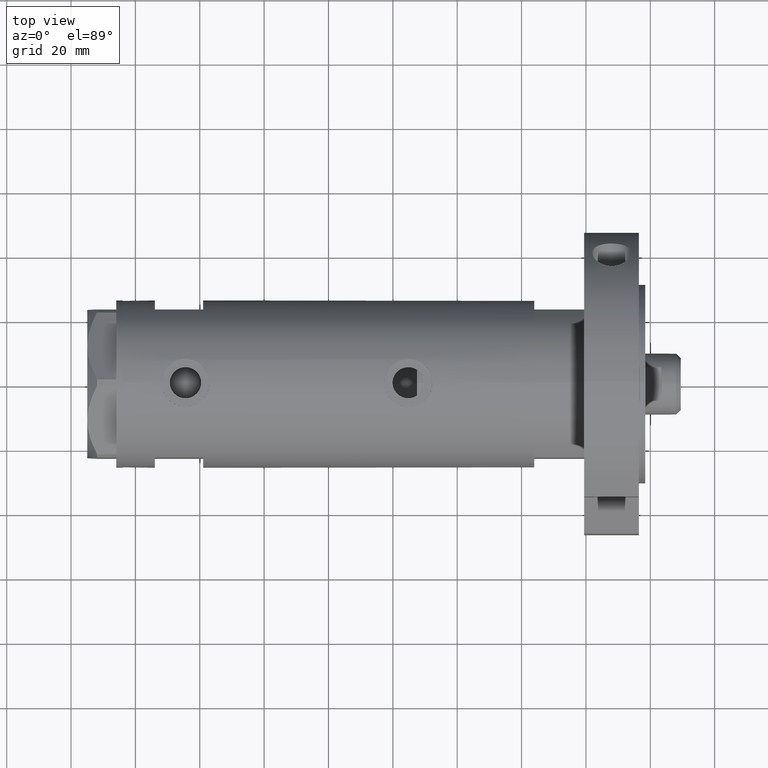
[diagram: clean part render]
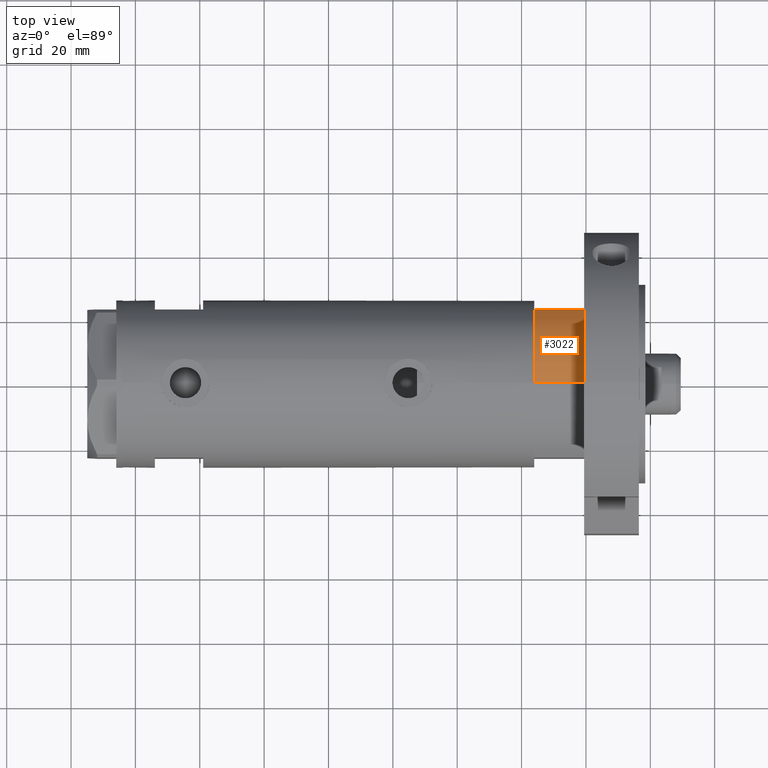
[diagram: same view with one face highlighted and labeled with its STEP entity id]
A machine part, top view. The second image highlights one B-rep face of the part: STEP entity #3022.
In plain terms, the highlighted cylindrical surface (partial cylindrical patch) has radius 26 mm, axis along (-1, -0, 0).
Its self-contained STEP definition (entity closure, byte-faithful):
#201 = ORIENTED_EDGE ( 'NONE', *, *, #5732, .F. ) ;
#350 = DIRECTION ( 'NONE',  ( 0.000000000000000000, 0.000000000000000000, 1.000000000000000000 ) ) ;
#492 = VECTOR ( 'NONE', #4366, 1000.000000000000000 ) ;
#555 = CIRCLE ( 'NONE', #2131, 26.00000000000000355 ) ;
#937 = ORIENTED_EDGE ( 'NONE', *, *, #1455, .F. ) ;
#1052 = CARTESIAN_POINT ( 'NONE',  ( 0.000000000000000000, 0.000000000000000000, 15.50000000000000000 ) ) ;
#1455 = EDGE_CURVE ( 'NONE', #4258, #5343, #4001, .T. ) ;
#2131 = AXIS2_PLACEMENT_3D ( 'NONE', #4830, #350, #2873 ) ;
#2324 = EDGE_LOOP ( 'NONE', ( #6134, #201, #937, #6056 ) ) ;
#2518 = DIRECTION ( 'NONE',  ( -0.000000000000000000, -0.000000000000000000, -1.000000000000000000 ) ) ;
#2873 = DIRECTION ( 'NONE',  ( 1.000000000000000000, 0.000000000000000000, 0.000000000000000000 ) ) ;
#2932 = DIRECTION ( 'NONE',  ( -0.000000000000000000, -0.000000000000000000, -1.000000000000000000 ) ) ;
#3022 = ADVANCED_FACE ( 'NONE', ( #4046 ), #4077, .T. ) ;
#3031 = DIRECTION ( 'NONE',  ( -1.000000000000000000, 0.000000000000000000, 0.000000000000000000 ) ) ;
#3391 = LINE ( 'NONE', #3911, #5367 ) ;
#3469 = AXIS2_PLACEMENT_3D ( 'NONE', #1052, #2518, #3031 ) ;
#3809 = VERTEX_POINT ( 'NONE', #5803 ) ;
#3896 = DIRECTION ( 'NONE',  ( 0.000000000000000000, 0.000000000000000000, 1.000000000000000000 ) ) ;
#3898 = AXIS2_PLACEMENT_3D ( 'NONE', #4416, #3896, #5911 ) ;
#3911 = CARTESIAN_POINT ( 'NONE',  ( -26.00000000000000355, 0.000000000000000000, 15.50000000000000000 ) ) ;
#4001 = LINE ( 'NONE', #6026, #492 ) ;
#4046 = FACE_OUTER_BOUND ( 'NONE', #2324, .T. ) ;
#4077 = CYLINDRICAL_SURFACE ( 'NONE', #3469, 26.00000000000000355 ) ;
#4216 = CIRCLE ( 'NONE', #3898, 26.00000000000000355 ) ;
#4258 = VERTEX_POINT ( 'NONE', #4934 ) ;
#4366 = DIRECTION ( 'NONE',  ( -0.000000000000000000, -0.000000000000000000, 1.000000000000000000 ) ) ;
#4415 = CARTESIAN_POINT ( 'NONE',  ( -26.00000000000000355, 0.000000000000000000, 15.50000000000000000 ) ) ;
#4416 = CARTESIAN_POINT ( 'NONE',  ( 0.000000000000000000, 0.000000000000000000, 15.50000000000000000 ) ) ;
#4830 = CARTESIAN_POINT ( 'NONE',  ( 0.000000000000000000, 0.000000000000000000, 0.000000000000000000 ) ) ;
#4934 = CARTESIAN_POINT ( 'NONE',  ( -12.12435565298215145, 23.00000000000000355, 0.000000000000000000 ) ) ;
#4951 = EDGE_CURVE ( 'NONE', #5319, #3809, #3391, .T. ) ;
#4990 = EDGE_CURVE ( 'NONE', #4258, #3809, #555, .T. ) ;
#5315 = CARTESIAN_POINT ( 'NONE',  ( -12.12435565298214613, 23.00000000000000355, 15.50000000000000000 ) ) ;
#5319 = VERTEX_POINT ( 'NONE', #4415 ) ;
#5343 = VERTEX_POINT ( 'NONE', #5315 ) ;
#5367 = VECTOR ( 'NONE', #2932, 1000.000000000000000 ) ;
#5732 = EDGE_CURVE ( 'NONE', #5343, #5319, #4216, .T. ) ;
#5803 = CARTESIAN_POINT ( 'NONE',  ( -26.00000000000000355, 0.000000000000000000, 0.000000000000000000 ) ) ;
#5911 = DIRECTION ( 'NONE',  ( 1.000000000000000000, 0.000000000000000000, 0.000000000000000000 ) ) ;
#6026 = CARTESIAN_POINT ( 'NONE',  ( -12.12435565298215145, 23.00000000000000355, 0.000000000000000000 ) ) ;
#6056 = ORIENTED_EDGE ( 'NONE', *, *, #4990, .T. ) ;
#6134 = ORIENTED_EDGE ( 'NONE', *, *, #4951, .F. ) ;